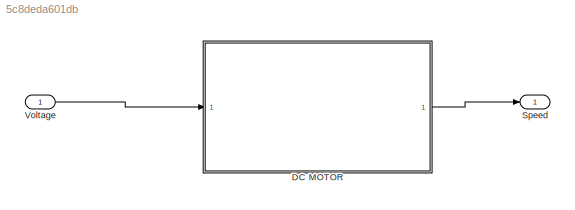
MODEL slx_5c8deda601db
KIND model
CONFIG AbsTol = auto
CONFIG EnableMultiTasking = off
CONFIG FixedStep = auto
CONFIG MaxStep = auto
CONFIG MinStep = auto
CONFIG RelTol = 1e-3
CONFIG SampleTimeConstraint = Unconstrained
CONFIG Solver = VariableStepAuto
CONFIG SolverName = VariableStepAuto
CONFIG StartTime = 0.0
CONFIG StopTime = 10
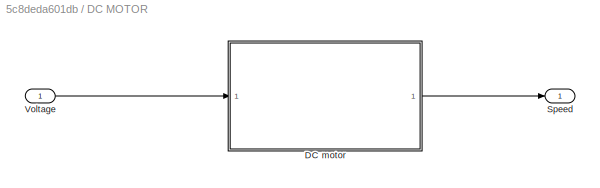
BLOCK [SubSystem] DC MOTOR
  Ports = [1, 1]
  RequestExecContextInheritance = off
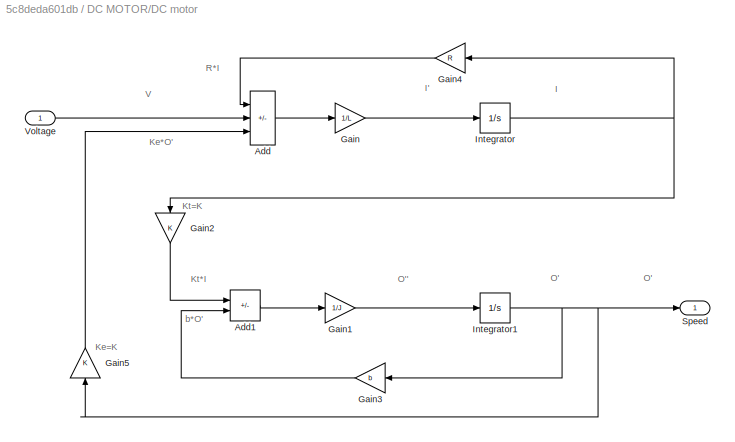
BLOCK [SubSystem] DC MOTOR/DC motor
  Ports = [1, 1]
  RequestExecContextInheritance = off
BLOCK [Sum] DC MOTOR/DC motor/Add
  IconShape = rectangular
  Inputs = -+-
  Ports = [3, 1]
BLOCK [Sum] DC MOTOR/DC motor/Add1
  IconShape = rectangular
  Inputs = +-
  Ports = [2, 1]
BLOCK [Gain] DC MOTOR/DC motor/Gain
  Gain = 1/L
BLOCK [Gain] DC MOTOR/DC motor/Gain1
  Gain = 1/J
BLOCK [Gain] DC MOTOR/DC motor/Gain2
  Gain = K
  NameLocation = left
BLOCK [Gain] DC MOTOR/DC motor/Gain3
  Gain = b
  NameLocation = top
BLOCK [Gain] DC MOTOR/DC motor/Gain4
  Gain = R
  NameLocation = top
BLOCK [Gain] DC MOTOR/DC motor/Gain5
  Gain = K
  NameLocation = right
BLOCK [Integrator] DC MOTOR/DC motor/Integrator
  Ports = [1, 1]
BLOCK [Integrator] DC MOTOR/DC motor/Integrator1
  Ports = [1, 1]
BLOCK [Outport] DC MOTOR/DC motor/Speed
BLOCK [Inport] DC MOTOR/DC motor/Voltage
BLOCK [Outport] DC MOTOR/Speed
BLOCK [Inport] DC MOTOR/Voltage
BLOCK [Outport] Speed
BLOCK [Inport] Voltage
ANNOTATION DC MOTOR/DC motor: I
ANNOTATION DC MOTOR/DC motor: I'
ANNOTATION DC MOTOR/DC motor: Ke*O'
ANNOTATION DC MOTOR/DC motor: Ke=K
ANNOTATION DC MOTOR/DC motor: Kt*I
ANNOTATION DC MOTOR/DC motor: Kt=K
ANNOTATION DC MOTOR/DC motor: O'
ANNOTATION DC MOTOR/DC motor: O''
ANNOTATION DC MOTOR/DC motor: R*I
ANNOTATION DC MOTOR/DC motor: V
ANNOTATION DC MOTOR/DC motor: b*O'
LINE DC MOTOR/DC motor/Add1:1 -> DC MOTOR/DC motor/Gain1:1
LINE DC MOTOR/DC motor/Add:1 -> DC MOTOR/DC motor/Gain:1
LINE DC MOTOR/DC motor/Gain1:1 -> DC MOTOR/DC motor/Integrator1:1
LINE DC MOTOR/DC motor/Gain2:1 -> DC MOTOR/DC motor/Add1:1
LINE DC MOTOR/DC motor/Gain3:1 -> DC MOTOR/DC motor/Add1:2
LINE DC MOTOR/DC motor/Gain4:1 -> DC MOTOR/DC motor/Add:1
LINE DC MOTOR/DC motor/Gain5:1 -> DC MOTOR/DC motor/Add:3
LINE DC MOTOR/DC motor/Gain:1 -> DC MOTOR/DC motor/Integrator:1
NET DC MOTOR/DC motor/Integrator1:1 -> DC MOTOR/DC motor/Gain3:1, DC MOTOR/DC motor/Gain5:1, DC MOTOR/DC motor/Speed:1
NET DC MOTOR/DC motor/Integrator:1 -> DC MOTOR/DC motor/Gain2:1, DC MOTOR/DC motor/Gain4:1
LINE DC MOTOR/DC motor/Voltage:1 -> DC MOTOR/DC motor/Add:2
LINE DC MOTOR/DC motor:1 -> DC MOTOR/Speed:1
LINE DC MOTOR/Voltage:1 -> DC MOTOR/DC motor:1
LINE DC MOTOR:1 -> Speed:1
LINE Voltage:1 -> DC MOTOR:1
note: NET lines group one-source signal fan-out (src -> all destinations, sorted); 1:1 wires keep LINE
